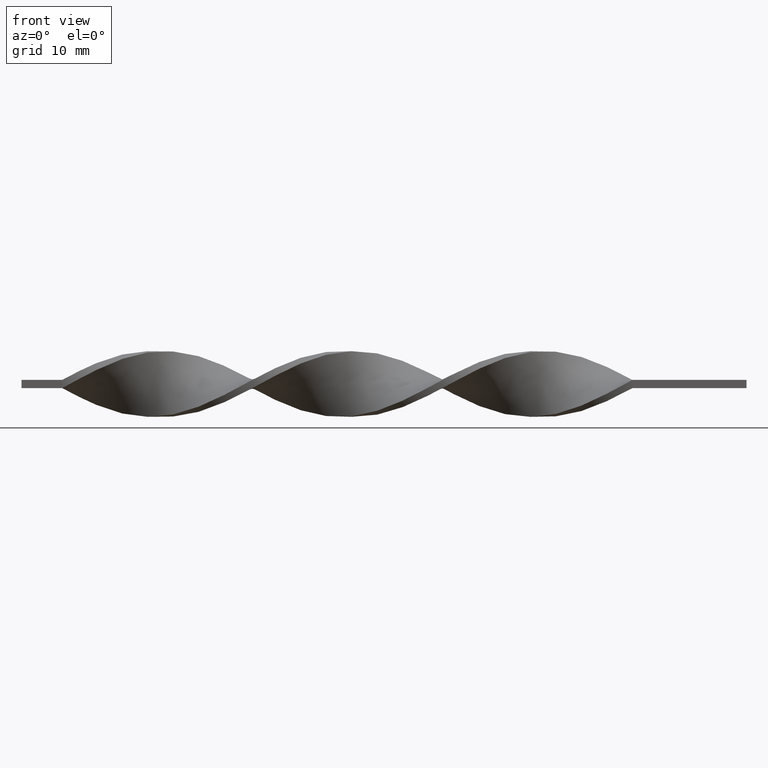
[diagram: clean part render]
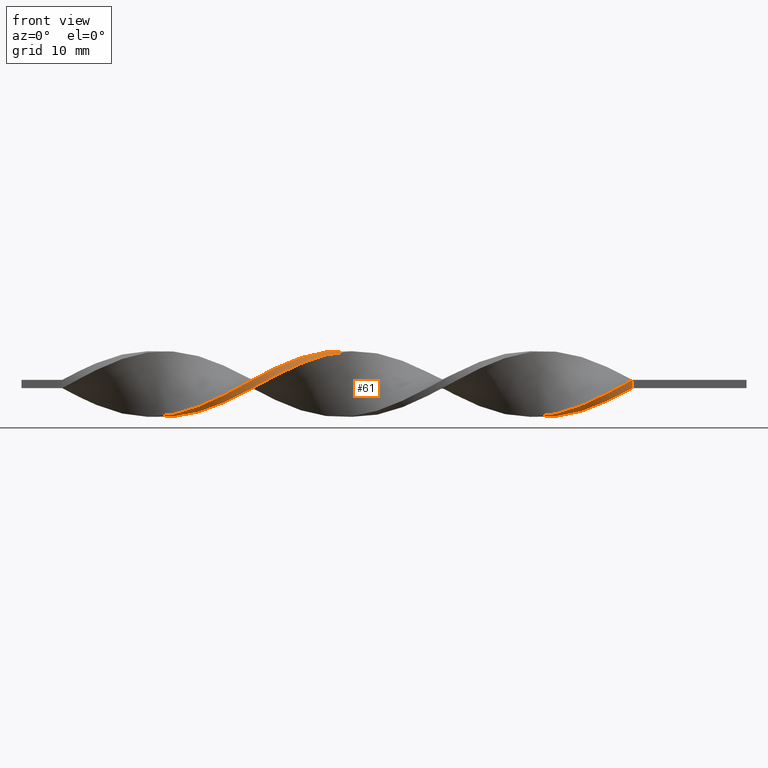
[diagram: same view with one face highlighted and labeled with its STEP entity id]
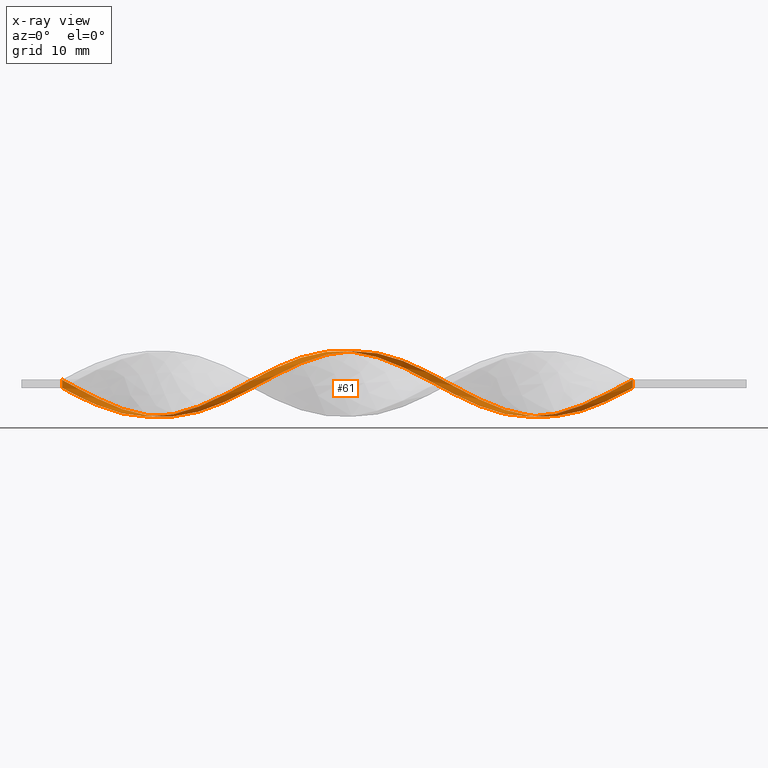
[diagram: x-ray of the same camera — body ghosted, the highlighted face saturated]
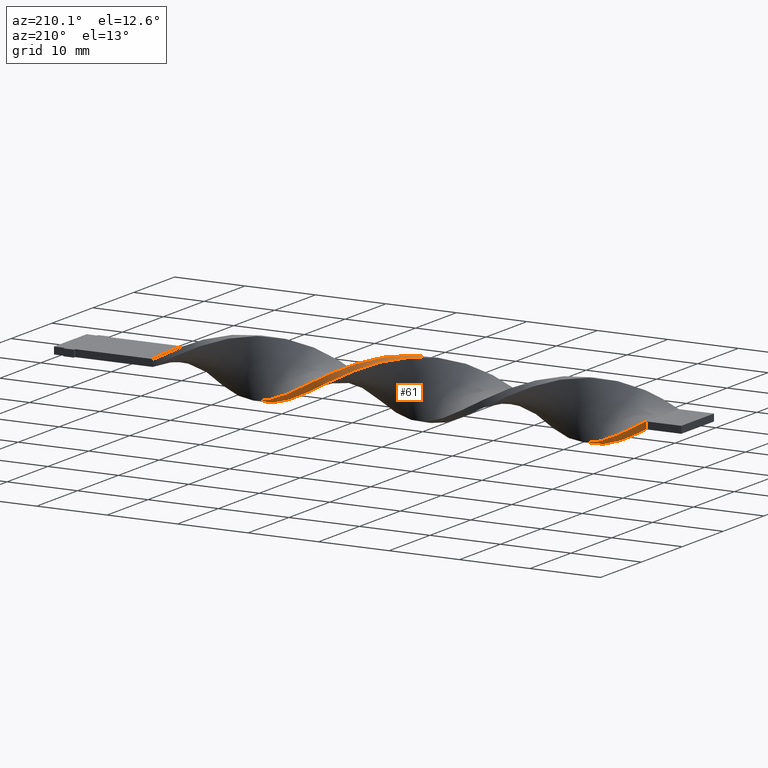
[diagram: same view with one face highlighted and labeled with its STEP entity id]
A machine part, front view. The second image highlights one B-rep face of the part: STEP entity #61.
The next image is the same camera in x-ray: the body ghosted, the highlighted face saturated — about 0% of this face is hidden behind the body in this view.
A second angle (auxiliary view) of the same face is appended — the face is thin or edge-on in the first view.
In plain terms, the highlighted face is a freeform B-spline surface patch.
Its self-contained STEP definition (entity closure, byte-faithful):
#4 = CARTESIAN_POINT ( 'NONE',  ( -36.43589743589743790, 4.060710991611127696, 0.01431206711095616389 ) ) ;
#14 = CARTESIAN_POINT ( 'NONE',  ( -57.07692307692307310, -3.774185688634725366, 1.416164675348471791 ) ) ;
#30 = CARTESIAN_POINT ( 'NONE',  ( -23.87179487179487580, -0.4752569063773750546, -4.032828965577023084 ) ) ;
#31 = CARTESIAN_POINT ( 'NONE',  ( -21.17948717948717885, -1.860767053977798069, -3.575967836940202815 ) ) ;
#38 = CARTESIAN_POINT ( 'NONE',  ( -24.76923076923076650, 0.01420771602773115982, -4.031103836519877248 ) ) ;
#46 = CARTESIAN_POINT ( 'NONE',  ( -52.58974358974359120, -2.318525361317903766, 3.333769449374405447 ) ) ;
#47 = CARTESIAN_POINT ( 'NONE',  ( -13.99999999999999822, -4.000000000000001776, 0.5000000000000000000 ) ) ;
#48 = CARTESIAN_POINT ( 'NONE',  ( -35.53846153846153300, 3.764109437560424265, -1.442733565863258072 ) ) ;
#56 = CARTESIAN_POINT ( 'NONE',  ( -49.89743589743589069, 0.01420771602773479234, 4.031103836519876360 ) ) ;
#57 = CARTESIAN_POINT ( 'NONE',  ( -53.48717948717948900, -2.683750919871453089, 3.007903090209048003 ) ) ;
#58 = CARTESIAN_POINT ( 'NONE',  ( -61.56410256410256920, -3.939289008388871860, -0.9856879328890418845 ) ) ;
#61 = ADVANCED_FACE ( 'NONE', ( #1386 ), #419, .T. ) ;
#64 = CARTESIAN_POINT ( 'NONE',  ( -83.10256410256410220, 3.939289008388866531, -0.9856879328890437719 ) ) ;
#65 = CARTESIAN_POINT ( 'NONE',  ( -72.33333333333332860, 0.5036723384328382069, -4.029378707462730524 ) ) ;
#66 = CARTESIAN_POINT ( 'NONE',  ( -81.30769230769233502, 3.946139212084839976, -0.9578955639853685700 ) ) ;
#73 = CARTESIAN_POINT ( 'NONE',  ( -84.00000000000000000, 3.999999999999996447, 0.4999999999999994449 ) ) ;
#79 = CARTESIAN_POINT ( 'NONE',  ( -80.41025641025640880, 3.774185688634719593, -1.416164675348469348 ) ) ;
#81 = CARTESIAN_POINT ( 'NONE',  ( -37.33333333333332860, 3.999999999999996447, -0.5000000000000005551 ) ) ;
#91 = CARTESIAN_POINT ( 'NONE',  ( -31.05128205128205821, 3.048976478424995751, -2.682036731043690114 ) ) ;
#90 = CARTESIAN_POINT ( 'NONE',  ( -62.46153846153845990, -3.764109437560431370, -1.442733565863256739 ) ) ;
#96 =( BOUNDED_CURVE ( )  B_SPLINE_CURVE ( 2, ( #847, #371, #967, #1331, #715, #98, #224, #356, #1109, #339, #738, #1080, #708, #232, #486, #470, #1597, #1609, #491, #599, #1322, #981, #1480, #1085, #830, #1575, #957, #1452, #1095, #207, #1199, #618, #1232, #1585, #1208, #590, #857, #348, #1339, #864, #1354, #722, #478, #841, #730, #1103, #216, #1217, #242, #105, #974, #121, #1473, #365, #1225, #612, #1012, #1502, #144, #158, #1383, #135, #778, #995, #271, #900, #650, #1116, #393, #754, #522, #1494, #1271, #887, #771, #657, #1137, #1391, #1264 ),
 .UNSPECIFIED., .F., .T. ) 
 B_SPLINE_CURVE_WITH_KNOTS ( ( 3, 2, 2, 2, 2, 2, 2, 2, 2, 2, 2, 2, 2, 2, 2, 2, 2, 2, 2, 2, 2, 2, 2, 2, 2, 2, 2, 2, 2, 2, 2, 2, 2, 2, 2, 2, 2, 2, 2, 3 ),
 ( 0.000000000000000000, 0.01923076923076923184, 0.03846153846153846367, 0.05769230769230768857, 0.07692307692307692735, 0.09615384615384615918, 0.1153846153846153771, 0.1346153846153846090, 0.1538461538461538547, 0.1730769230769230449, 0.1923076923076923184, 0.2115384615384615363, 0.2307692307692307543, 0.2500000000000000000, 0.2692307692307692180, 0.2884615384615384359, 0.3076923076923077094, 0.3269230769230769273, 0.3461538461538460898, 0.3653846153846153633, 0.3846153846153846367, 0.4038461538461539102, 0.4230769230769230727, 0.4423076923076922906, 0.4615384615384615086, 0.4807692307692307820, 0.5000000000000000000, 0.5192307692307692735, 0.5384615384615384359, 0.5576923076923077094, 0.5769230769230768718, 0.5961538461538461453, 0.6153846153846154188, 0.6346153846153845812, 0.6538461538461538547, 0.6730769230769230171, 0.6923076923076921796, 0.7115384615384615641, 0.7307692307692307265, 0.7500000000000000000 ),
 .UNSPECIFIED. ) 
 CURVE ( )  GEOMETRIC_REPRESENTATION_ITEM ( )  RATIONAL_B_SPLINE_CURVE ( ( 1.000000000000000000, 0.9927088740980539727, 1.000000000000000000, 0.9927088740980539727, 1.000000000000000000, 0.9927088740980539727, 1.000000000000000000, 0.9927088740980539727, 1.000000000000000000, 0.9927088740980539727, 1.000000000000000000, 0.9927088740980539727, 1.000000000000000000, 0.9927088740980539727, 1.000000000000000000, 0.9927088740980539727, 1.000000000000000000, 0.9927088740980539727, 1.000000000000000000, 0.9927088740980539727, 1.000000000000000000, 0.9927088740980539727, 1.000000000000000000, 0.9927088740980539727, 1.000000000000000000, 0.9927088740980539727, 1.000000000000000000, 0.9927088740980539727, 1.000000000000000000, 0.9927088740980539727, 1.000000000000000000, 0.9927088740980539727, 1.000000000000000000, 0.9927088740980539727, 1.000000000000000000, 0.9927088740980539727, 1.000000000000000000, 0.9927088740980539727, 1.000000000000000000, 0.9927088740980539727, 1.000000000000000000, 0.9927088740980539727, 1.000000000000000000, 0.9927088740980539727, 1.000000000000000000, 0.9927088740980539727, 1.000000000000000000, 0.9927088740980539727, 1.000000000000000000, 0.9927088740980539727, 1.000000000000000000, 0.9927088740980539727, 1.000000000000000000, 0.9927088740980539727, 1.000000000000000000, 0.9927088740980539727, 1.000000000000000000, 0.9927088740980539727, 1.000000000000000000, 0.9927088740980539727, 1.000000000000000000, 0.9927088740980539727, 1.000000000000000000, 0.9927088740980539727, 1.000000000000000000, 0.9927088740980539727, 1.000000000000000000, 0.9927088740980539727, 1.000000000000000000, 0.9927088740980539727, 1.000000000000000000, 0.9927088740980539727, 1.000000000000000000, 0.9927088740980539727, 1.000000000000000000, 0.9927088740980539727, 1.000000000000000000, 0.9927088740980539727, 1.000000000000000000 ) ) 
 REPRESENTATION_ITEM ( '' )  );
#98 = CARTESIAN_POINT ( 'NONE',  ( -18.48717948717948545, -3.602232165184606760, -1.874433786711570127 ) ) ;
#99 = CARTESIAN_POINT ( 'NONE',  ( -71.43589743589743080, 0.01420771602773115982, -4.031103836519877248 ) ) ;
#103 = CARTESIAN_POINT ( 'NONE',  ( -38.23076923076922640, 4.060710991611128584, -0.01431206711095887527 ) ) ;
#105 = CARTESIAN_POINT ( 'NONE',  ( -57.97435897435897090, -3.588929866731990881, 1.899779198837473260 ) ) ;
#121 = CARTESIAN_POINT ( 'NONE',  ( -59.76923076923076650, -3.939289008388871416, 0.9856879328890443270 ) ) ;
#129 = CARTESIAN_POINT ( 'NONE',  ( -22.07692307692308020, -1.426565947277501190, -3.801905862948829817 ) ) ;
#135 = CARTESIAN_POINT ( 'NONE',  ( -68.74358974358973740, -2.318525361317905986, -3.333769449374404559 ) ) ;
#144 = CARTESIAN_POINT ( 'NONE',  ( -66.05128205128204399, -3.325604321804804364, -2.278235258877629121 ) ) ;
#146 = CARTESIAN_POINT ( 'NONE',  ( -19.38461538461538325, -3.325604321804804364, -2.278235258877629121 ) ) ;
#150 = CARTESIAN_POINT ( 'NONE',  ( -84.00000000000000000, 3.999999999999996447, 0.4999999999999994449 ) ) ;
#152 = CARTESIAN_POINT ( 'NONE',  ( -28.35897435897435770, 1.885927669512846183, -3.562762527220390663 ) ) ;
#158 = CARTESIAN_POINT ( 'NONE',  ( -66.94871794871795601, -3.048976478425003300, -2.682036731043689670 ) ) ;
#161 = CARTESIAN_POINT ( 'NONE',  ( -40.02564102564102200, 3.588929866731985996, 1.899779198837470151 ) ) ;
#167 = CARTESIAN_POINT ( 'NONE',  ( -43.61538461538461320, 3.048976478424997527, 2.682036731043688338 ) ) ;
#168 = CARTESIAN_POINT ( 'NONE',  ( -71.43589743589743080, 0.01420771602773115982, -4.031103836519877248 ) ) ;
#169 = CARTESIAN_POINT ( 'NONE',  ( -23.87179487179487580, -0.4752569063773750546, -4.032828965577023084 ) ) ;
#175 = CARTESIAN_POINT ( 'NONE',  ( -82.20512820512820440, 3.764109437560424265, -1.442733565863258072 ) ) ;
#176 = CARTESIAN_POINT ( 'NONE',  ( -48.10256410256410220, -0.01420771602773587654, 4.031103836519877248 ) ) ;
#183 = CARTESIAN_POINT ( 'NONE',  ( -80.41025641025640880, 3.309462516590951253, -2.301620701001679148 ) ) ;
#184 = CARTESIAN_POINT ( 'NONE',  ( -70.53846153846153300, -0.4752569063773750546, -4.032828965577023084 ) ) ;
#190 = CARTESIAN_POINT ( 'NONE',  ( -73.23076923076924061, 0.9785011580703154577, -3.910567156264553645 ) ) ;
#191 = CARTESIAN_POINT ( 'NONE',  ( -57.97435897435897090, -3.946139212084846193, 0.9578955639853690140 ) ) ;
#192 = CARTESIAN_POINT ( 'NONE',  ( -80.41025641025640880, 3.774185688634719593, -1.416164675348469348 ) ) ;
#205 = CARTESIAN_POINT ( 'NONE',  ( -30.15384615384615330, 1.860767053977791186, -3.575967836940203259 ) ) ;
#207 = CARTESIAN_POINT ( 'NONE',  ( -40.02564102564102200, 3.946139212084840420, 0.9578955639853660164 ) ) ;
#216 = CARTESIAN_POINT ( 'NONE',  ( -55.28205128205128460, -2.662481663564007395, 3.026746007048731535 ) ) ;
#223 = CARTESIAN_POINT ( 'NONE',  ( -43.61538461538461320, 2.294968160678089841, 3.350029810931575369 ) ) ;
#224 = CARTESIAN_POINT ( 'NONE',  ( -19.38461538461538325, -3.325604321804804364, -2.278235258877629121 ) ) ;
#226 = CARTESIAN_POINT ( 'NONE',  ( -74.12820512820512420, 1.453329977707793486, -3.791755605066376766 ) ) ;
#232 = CARTESIAN_POINT ( 'NONE',  ( -25.66666666666666785, -0.5036723384328447572, -4.029378707462730524 ) ) ;
#233 = CARTESIAN_POINT ( 'NONE',  ( -41.82051282051281760, 3.602232165184600987, 1.874433786711569683 ) ) ;
#242 = CARTESIAN_POINT ( 'NONE',  ( -57.07692307692307310, -3.309462516590956138, 2.301620701001680924 ) ) ;
#248 = CARTESIAN_POINT ( 'NONE',  ( -43.61538461538461320, 2.294968160678089397, 3.350029810931575369 ) ) ;
#249 = VERTEX_POINT ( 'NONE', #150 ) ;
#254 = CARTESIAN_POINT ( 'NONE',  ( -16.69230769230769340, -3.588929866731991769, -1.899779198837471483 ) ) ;
#265 = CARTESIAN_POINT ( 'NONE',  ( -14.89743589743589602, -3.939289008388871416, -0.9856879328890418845 ) ) ;
#271 = CARTESIAN_POINT ( 'NONE',  ( -71.43589743589743080, -0.9785011580703230072, -3.910567156264553645 ) ) ;
#273 = CARTESIAN_POINT ( 'NONE',  ( -17.58974358974358765, -3.309462516590957915, -2.301620701001678260 ) ) ;
#280 = CARTESIAN_POINT ( 'NONE',  ( -13.99999999999999645, -4.000000000000001776, 0.5000000000000000000 ) ) ;
#287 = CARTESIAN_POINT ( 'NONE',  ( -59.76923076923077360, -3.939289008388871860, 0.9856879328890442160 ) ) ;
#288 = CARTESIAN_POINT ( 'NONE',  ( -76.82051282051281760, 2.683750919871447760, -3.007903090209047114 ) ) ;
#289 = CARTESIAN_POINT ( 'NONE',  ( -19.38461538461538325, -2.662481663564009615, -3.026746007048730203 ) ) ;
#295 = CARTESIAN_POINT ( 'NONE',  ( -47.20512820512820440, 1.453329977707793708, 3.791755605066376766 ) ) ;
#305 = CARTESIAN_POINT ( 'NONE',  ( -66.94871794871794179, -3.048976478425003300, -2.682036731043689226 ) ) ;
#306 = CARTESIAN_POINT ( 'NONE',  ( -61.56410256410256920, -3.939289008388871416, -0.9856879328890418845 ) ) ;
#315 = CARTESIAN_POINT ( 'NONE',  ( -63.35897435897435770, -3.946139212084847081, -0.9578955639853673487 ) ) ;
#317 = CARTESIAN_POINT ( 'NONE',  ( -83.10256410256410220, 4.060710991611128584, 0.01431206711095616389 ) ) ;
#319 = CARTESIAN_POINT ( 'NONE',  ( -15.79487179487179205, -4.003425101847988721, -0.4717917484372047832 ) ) ;
#320 = CARTESIAN_POINT ( 'NONE',  ( -31.05128205128205821, 2.294968160678087621, -3.350029810931577146 ) ) ;
#321 = CARTESIAN_POINT ( 'NONE',  ( -29.25641025641025905, 2.318525361317899325, -3.333769449374405003 ) ) ;
#326 = CARTESIAN_POINT ( 'NONE',  ( -27.46153846153846345, 0.4752569063773683933, -4.032828965577022196 ) ) ;
#327 = CARTESIAN_POINT ( 'NONE',  ( -61.56410256410256920, -4.060710991611132137, 0.01431206711095800790 ) ) ;
#328 = CARTESIAN_POINT ( 'NONE',  ( -65.15384615384614619, -3.029995166449924948, -2.703462203165885480 ) ) ;
#336 = CARTESIAN_POINT ( 'NONE',  ( -26.56410256410256210, -0.01420771602773864169, -4.031103836519877248 ) ) ;
#338 = CARTESIAN_POINT ( 'NONE',  ( -50.79487179487178850, -1.453329977707798815, 3.791755605066378099 ) ) ;
#339 = CARTESIAN_POINT ( 'NONE',  ( -22.07692307692308020, -2.318525361317905986, -3.333769449374404559 ) ) ;
#348 = CARTESIAN_POINT ( 'NONE',  ( -47.20512820512820440, 1.453329977707793708, 3.791755605066376766 ) ) ;
#350 = CARTESIAN_POINT ( 'NONE',  ( -79.51282051282051100, 3.602232165184600099, -1.874433786711570571 ) ) ;
#356 = CARTESIAN_POINT ( 'NONE',  ( -20.28205128205128460, -3.048976478425003300, -2.682036731043689670 ) ) ;
#359 = CARTESIAN_POINT ( 'NONE',  ( -69.64102564102564941, -0.9509114268274386772, -3.917367414262925784 ) ) ;
#365 = CARTESIAN_POINT ( 'NONE',  ( -61.56410256410256920, -4.060710991611132137, 0.01431206711095800790 ) ) ;
#366 = CARTESIAN_POINT ( 'NONE',  ( -65.15384615384614619, -3.029995166449924504, -2.703462203165885924 ) ) ;
#371 = CARTESIAN_POINT ( 'NONE',  ( -14.89743589743589602, -4.060710991611132137, 0.01431206711095800790 ) ) ;
#382 = CARTESIAN_POINT ( 'NONE',  ( -36.43589743589743790, 4.060710991611128584, 0.01431206711095616389 ) ) ;
#389 = CARTESIAN_POINT ( 'NONE',  ( -18.48717948717948545, -3.602232165184606760, -1.874433786711570127 ) ) ;
#393 = CARTESIAN_POINT ( 'NONE',  ( -75.02564102564102200, 0.9509114268274311277, -3.917367414262925784 ) ) ;
#394 = DIRECTION ( 'NONE',  ( -0.000000000000000000, -0.000000000000000000, -1.000000000000000000 ) ) ;
#395 = B_SPLINE_CURVE_WITH_KNOTS ( 'NONE', 3,
 ( #1511, #1361, #1250, #764 ),
 .UNSPECIFIED., .F., .F.,
 ( 4, 4 ),
 ( 0.000000000000000000, 1.000000000000000000 ),
 .UNSPECIFIED. ) ;
#408 = CARTESIAN_POINT ( 'NONE',  ( -33.74358974358974450, 3.774185688634719593, -1.416164675348469348 ) ) ;
#409 = VERTEX_POINT ( 'NONE', #1491 ) ;
#414 = CARTESIAN_POINT ( 'NONE',  ( -55.28205128205128460, -2.662481663564007395, 3.026746007048731535 ) ) ;
#415 = CARTESIAN_POINT ( 'NONE',  ( -41.82051282051281760, 3.029995166449919175, 2.703462203165885480 ) ) ;
#416 = CARTESIAN_POINT ( 'NONE',  ( -18.48717948717948545, -3.029995166449924504, -2.703462203165885924 ) ) ;
#419 =( BOUNDED_SURFACE ( )  B_SPLINE_SURFACE ( 1, 2, ( 
 ( #660, #526, #1266, #1017, #273, #416, #289, #1141, #31, #1150, #791, #169, #1367, #637, #646, #1455, #676, #321, #1446, #91, #1087, #1612, #1589, #543, #742, #382, #1482, #1244, #509, #999, #1498, #1462, #1338, #223, #1216, #606, #1596, #460, #973, #1479, #947, #338, #1321, #707, #589, #747, #633, #997, #14, #191, #1560, #917, #1314, #58, #90, #1209, #1096, #366, #480, #976, #1325, #1467, #359, #699, #99, #850, #1341, #226, #1074, #724, #832, #1577, #959, #350, #192, #66, #1444, #317, #831 ),
 ( #47, #1055, #319, #1023, #507, #389, #146, #1368, #1385, #525, #1016, #1182, #939, #1432, #336, #326, #828, #1319, #205, #320, #452, #1300, #683, #1062, #48, #621, #81, #103, #1101, #641, #855, #233, #1374, #167, #1295, #1312, #1305, #295, #1030, #1169, #56, #665, #426, #1525, #1060, #908, #414, #1045, #1400, #924, #1053, #287, #1550, #327, #658, #315, #1542, #821, #940, #305, #565, #672, #931, #441, #1424, #557, #797, #789, #815, #1281, #433, #1417, #1433, #804, #183, #1287, #175, #64, #681 ) ),
 .UNSPECIFIED., .F., .F., .F. ) 
 B_SPLINE_SURFACE_WITH_KNOTS ( ( 2, 2 ),
 ( 3, 2, 2, 2, 2, 2, 2, 2, 2, 2, 2, 2, 2, 2, 2, 2, 2, 2, 2, 2, 2, 2, 2, 2, 2, 2, 2, 2, 2, 2, 2, 2, 2, 2, 2, 2, 2, 2, 2, 3 ),
 ( 0.000000000000000000, 1.000000000000000000 ),
 ( 0.000000000000000000, 0.01923076923076923184, 0.03846153846153846367, 0.05769230769230769551, 0.07692307692307692735, 0.09615384615384615918, 0.1153846153846153910, 0.1346153846153846090, 0.1538461538461538547, 0.1730769230769230727, 0.1923076923076923184, 0.2115384615384615363, 0.2307692307692307820, 0.2500000000000000000, 0.2692307692307692180, 0.2884615384615384359, 0.3076923076923077094, 0.3269230769230769273, 0.3461538461538461453, 0.3653846153846153633, 0.3846153846153846367, 0.4038461538461538547, 0.4230769230769230727, 0.4423076923076922906, 0.4615384615384615641, 0.4807692307692307820, 0.5000000000000000000, 0.5192307692307692735, 0.5384615384615384359, 0.5576923076923077094, 0.5769230769230768718, 0.5961538461538461453, 0.6153846153846154188, 0.6346153846153845812, 0.6538461538461538547, 0.6730769230769231282, 0.6923076923076922906, 0.7115384615384615641, 0.7307692307692307265, 0.7500000000000000000 ),
 .UNSPECIFIED. ) 
 GEOMETRIC_REPRESENTATION_ITEM ( )  RATIONAL_B_SPLINE_SURFACE ( (
 ( 1.000000000000000000, 0.9927088740980539727, 1.000000000000000000, 0.9927088740980539727, 1.000000000000000000, 0.9927088740980539727, 1.000000000000000000, 0.9927088740980539727, 1.000000000000000000, 0.9927088740980539727, 1.000000000000000000, 0.9927088740980539727, 1.000000000000000000, 0.9927088740980539727, 1.000000000000000000, 0.9927088740980539727, 1.000000000000000000, 0.9927088740980539727, 1.000000000000000000, 0.9927088740980539727, 1.000000000000000000, 0.9927088740980539727, 1.000000000000000000, 0.9927088740980539727, 1.000000000000000000, 0.9927088740980539727, 1.000000000000000000, 0.9927088740980539727, 1.000000000000000000, 0.9927088740980539727, 1.000000000000000000, 0.9927088740980539727, 1.000000000000000000, 0.9927088740980539727, 1.000000000000000000, 0.9927088740980539727, 1.000000000000000000, 0.9927088740980539727, 1.000000000000000000, 0.9927088740980539727, 1.000000000000000000, 0.9927088740980539727, 1.000000000000000000, 0.9927088740980539727, 1.000000000000000000, 0.9927088740980539727, 1.000000000000000000, 0.9927088740980539727, 1.000000000000000000, 0.9927088740980539727, 1.000000000000000000, 0.9927088740980539727, 1.000000000000000000, 0.9927088740980539727, 1.000000000000000000, 0.9927088740980539727, 1.000000000000000000, 0.9927088740980539727, 1.000000000000000000, 0.9927088740980539727, 1.000000000000000000, 0.9927088740980539727, 1.000000000000000000, 0.9927088740980539727, 1.000000000000000000, 0.9927088740980539727, 1.000000000000000000, 0.9927088740980539727, 1.000000000000000000, 0.9927088740980539727, 1.000000000000000000, 0.9927088740980539727, 1.000000000000000000, 0.9927088740980539727, 1.000000000000000000, 0.9927088740980539727, 1.000000000000000000, 0.9927088740980539727, 1.000000000000000000),
 ( 1.000000000000000000, 0.9927088740980539727, 1.000000000000000000, 0.9927088740980539727, 1.000000000000000000, 0.9927088740980539727, 1.000000000000000000, 0.9927088740980539727, 1.000000000000000000, 0.9927088740980539727, 1.000000000000000000, 0.9927088740980539727, 1.000000000000000000, 0.9927088740980539727, 1.000000000000000000, 0.9927088740980539727, 1.000000000000000000, 0.9927088740980539727, 1.000000000000000000, 0.9927088740980539727, 1.000000000000000000, 0.9927088740980539727, 1.000000000000000000, 0.9927088740980539727, 1.000000000000000000, 0.9927088740980539727, 1.000000000000000000, 0.9927088740980539727, 1.000000000000000000, 0.9927088740980539727, 1.000000000000000000, 0.9927088740980539727, 1.000000000000000000, 0.9927088740980539727, 1.000000000000000000, 0.9927088740980539727, 1.000000000000000000, 0.9927088740980539727, 1.000000000000000000, 0.9927088740980539727, 1.000000000000000000, 0.9927088740980539727, 1.000000000000000000, 0.9927088740980539727, 1.000000000000000000, 0.9927088740980539727, 1.000000000000000000, 0.9927088740980539727, 1.000000000000000000, 0.9927088740980539727, 1.000000000000000000, 0.9927088740980539727, 1.000000000000000000, 0.9927088740980539727, 1.000000000000000000, 0.9927088740980539727, 1.000000000000000000, 0.9927088740980539727, 1.000000000000000000, 0.9927088740980539727, 1.000000000000000000, 0.9927088740980539727, 1.000000000000000000, 0.9927088740980539727, 1.000000000000000000, 0.9927088740980539727, 1.000000000000000000, 0.9927088740980539727, 1.000000000000000000, 0.9927088740980539727, 1.000000000000000000, 0.9927088740980539727, 1.000000000000000000, 0.9927088740980539727, 1.000000000000000000, 0.9927088740980539727, 1.000000000000000000, 0.9927088740980539727, 1.000000000000000000) ) ) 
 REPRESENTATION_ITEM ( '' )  SURFACE ( )  );
#426 = CARTESIAN_POINT ( 'NONE',  ( -51.69230769230769340, -0.9509114268274376780, 3.917367414262926673 ) ) ;
#427 = CARTESIAN_POINT ( 'NONE',  ( -63.35897435897436480, -3.588929866731991769, -1.899779198837471483 ) ) ;
#433 = CARTESIAN_POINT ( 'NONE',  ( -76.82051282051281760, 1.860767053977791186, -3.575967836940203259 ) ) ;
#434 = CARTESIAN_POINT ( 'NONE',  ( -59.76923076923076650, -4.060710991611132137, -0.01431206711095567644 ) ) ;
#436 = VERTEX_POINT ( 'NONE', #494 ) ;
#441 = CARTESIAN_POINT ( 'NONE',  ( -70.53846153846153300, -1.453329977707800813, -3.791755605066376766 ) ) ;
#442 = CARTESIAN_POINT ( 'NONE',  ( -57.07692307692307310, -3.774185688634725366, 1.416164675348471791 ) ) ;
#450 = CARTESIAN_POINT ( 'NONE',  ( -64.25641025641024839, -3.309462516590957915, -2.301620701001678260 ) ) ;
#452 = CARTESIAN_POINT ( 'NONE',  ( -31.94871794871794535, 2.662481663564002066, -3.026746007048731091 ) ) ;
#460 = CARTESIAN_POINT ( 'NONE',  ( -47.20512820512820440, 0.4752569063773685043, 4.032828965577022196 ) ) ;
#461 = CARTESIAN_POINT ( 'NONE',  ( -57.97435897435897090, -3.946139212084845749, 0.9578955639853691251 ) ) ;
#466 = VERTEX_POINT ( 'NONE', #488 ) ;
#470 = CARTESIAN_POINT ( 'NONE',  ( -27.46153846153846345, 0.4752569063773683933, -4.032828965577022196 ) ) ;
#478 = CARTESIAN_POINT ( 'NONE',  ( -51.69230769230769340, -0.9509114268274376780, 3.917367414262926673 ) ) ;
#480 = CARTESIAN_POINT ( 'NONE',  ( -66.05128205128204399, -2.662481663564009615, -3.026746007048730203 ) ) ;
#486 = CARTESIAN_POINT ( 'NONE',  ( -26.56410256410256210, -0.01420771602773864169, -4.031103836519877248 ) ) ;
#488 = CARTESIAN_POINT ( 'NONE',  ( -84.00000000000000000, 3.999999999999996447, -0.5000000000000005551 ) ) ;
#491 = CARTESIAN_POINT ( 'NONE',  ( -30.15384615384615330, 1.860767053977791186, -3.575967836940203259 ) ) ;
#494 = CARTESIAN_POINT ( 'NONE',  ( -13.99999999999999645, -4.000000000000001776, -0.5000000000000000000 ) ) ;
#506 = CARTESIAN_POINT ( 'NONE',  ( -44.51282051282051100, 1.860767053977792074, 3.575967836940202815 ) ) ;
#507 = CARTESIAN_POINT ( 'NONE',  ( -17.58974358974358765, -3.774185688634726255, -1.416164675348468682 ) ) ;
#509 = CARTESIAN_POINT ( 'NONE',  ( -39.12820512820512420, 3.764109437560425597, 1.442733565863255629 ) ) ;
#515 = CARTESIAN_POINT ( 'NONE',  ( -15.79487179487179205, -3.764109437560431370, -1.442733565863256739 ) ) ;
#522 = CARTESIAN_POINT ( 'NONE',  ( -76.82051282051281760, 1.860767053977791186, -3.575967836940203259 ) ) ;
#525 = CARTESIAN_POINT ( 'NONE',  ( -22.07692307692308376, -2.318525361317905542, -3.333769449374405003 ) ) ;
#526 = CARTESIAN_POINT ( 'NONE',  ( -14.89743589743589602, -3.939289008388871860, -0.9856879328890418845 ) ) ;
#534 = CARTESIAN_POINT ( 'NONE',  ( -17.58974358974358765, -3.309462516590957915, -2.301620701001678260 ) ) ;
#542 = CARTESIAN_POINT ( 'NONE',  ( -26.56410256410256210, 0.9785011580703154577, -3.910567156264553645 ) ) ;
#543 = CARTESIAN_POINT ( 'NONE',  ( -34.64102564102564230, 3.946139212084839976, -0.9578955639853685700 ) ) ;
#549 = CARTESIAN_POINT ( 'NONE',  ( -68.74358974358973740, -1.426565947277501190, -3.801905862948829817 ) ) ;
#554 = EDGE_CURVE ( 'NONE', #409, #436, #1015, .T. ) ;
#557 = CARTESIAN_POINT ( 'NONE',  ( -72.33333333333332860, -0.5036723384328446462, -4.029378707462730524 ) ) ;
#558 = CARTESIAN_POINT ( 'NONE',  ( -49.89743589743589069, -0.9785011580703193435, 3.910567156264554534 ) ) ;
#565 = CARTESIAN_POINT ( 'NONE',  ( -67.84615384615385381, -2.683750919871454421, -3.007903090209046670 ) ) ;
#589 = CARTESIAN_POINT ( 'NONE',  ( -53.48717948717948900, -2.683750919871453089, 3.007903090209048003 ) ) ;
#590 = CARTESIAN_POINT ( 'NONE',  ( -45.41025641025640880, 2.318525361317901545, 3.333769449374403671 ) ) ;
#599 = CARTESIAN_POINT ( 'NONE',  ( -31.05128205128205465, 2.294968160678087177, -3.350029810931577146 ) ) ;
#606 = CARTESIAN_POINT ( 'NONE',  ( -45.41025641025640880, 1.426565947277497193, 3.801905862948828485 ) ) ;
#612 = CARTESIAN_POINT ( 'NONE',  ( -63.35897435897436480, -3.946139212084846637, -0.9578955639853673487 ) ) ;
#618 = CARTESIAN_POINT ( 'NONE',  ( -41.82051282051281760, 3.602232165184600987, 1.874433786711569683 ) ) ;
#621 = CARTESIAN_POINT ( 'NONE',  ( -36.43589743589743790, 3.939289008388866531, -0.9856879328890437719 ) ) ;
#628 = CARTESIAN_POINT ( 'NONE',  ( -27.46153846153846345, 1.453329977707793486, -3.791755605066376766 ) ) ;
#633 = CARTESIAN_POINT ( 'NONE',  ( -55.28205128205128460, -3.325604321804803032, 2.278235258877630898 ) ) ;
#635 = CARTESIAN_POINT ( 'NONE',  ( -18.48717948717948545, -3.029995166449924948, -2.703462203165885480 ) ) ;
#637 = CARTESIAN_POINT ( 'NONE',  ( -25.66666666666666785, 0.5036723384328383180, -4.029378707462730524 ) ) ;
#640 = EDGE_CURVE ( 'NONE', #436, #249, #1536, .T. ) ;
#641 = CARTESIAN_POINT ( 'NONE',  ( -40.02564102564102200, 3.946139212084840864, 0.9578955639853660164 ) ) ;
#646 = CARTESIAN_POINT ( 'NONE',  ( -26.56410256410256210, 0.9785011580703154577, -3.910567156264553645 ) ) ;
#650 = CARTESIAN_POINT ( 'NONE',  ( -73.23076923076924061, -0.01420771602773864169, -4.031103836519877248 ) ) ;
#651 = CARTESIAN_POINT ( 'NONE',  ( -30.15384615384615330, 2.683750919871447760, -3.007903090209047114 ) ) ;
#653 = VECTOR ( 'NONE', #394, 1000.000000000000000 ) ;
#657 = CARTESIAN_POINT ( 'NONE',  ( -81.30769230769232081, 3.588929866731984664, -1.899779198837472816 ) ) ;
#658 = CARTESIAN_POINT ( 'NONE',  ( -62.46153846153845990, -4.003425101847988721, -0.4717917484372047832 ) ) ;
#659 = CARTESIAN_POINT ( 'NONE',  ( -38.23076923076922640, 3.939289008388866531, 0.9856879328890409964 ) ) ;
#660 = CARTESIAN_POINT ( 'NONE',  ( -13.99999999999999822, -4.000000000000001776, -0.5000000000000000000 ) ) ;
#665 = CARTESIAN_POINT ( 'NONE',  ( -50.79487179487178850, -0.4752569063773728897, 4.032828965577023084 ) ) ;
#666 = CARTESIAN_POINT ( 'NONE',  ( -69.64102564102564941, -0.9509114268274386772, -3.917367414262925784 ) ) ;
#672 = CARTESIAN_POINT ( 'NONE',  ( -68.74358974358973740, -2.318525361317905542, -3.333769449374405003 ) ) ;
#676 = CARTESIAN_POINT ( 'NONE',  ( -28.35897435897435770, 1.885927669512846183, -3.562762527220390663 ) ) ;
#681 = CARTESIAN_POINT ( 'NONE',  ( -84.00000000000000000, 3.999999999999996447, -0.5000000000000005551 ) ) ;
#682 = CARTESIAN_POINT ( 'NONE',  ( -78.61538461538461320, 3.325604321804797259, -2.278235258877630898 ) ) ;
#683 = CARTESIAN_POINT ( 'NONE',  ( -33.74358974358974450, 3.309462516590951253, -2.301620701001679148 ) ) ;
#690 = CARTESIAN_POINT ( 'NONE',  ( -75.02564102564102200, 1.885927669512846183, -3.562762527220390663 ) ) ;
#699 = CARTESIAN_POINT ( 'NONE',  ( -70.53846153846153300, -0.4752569063773750546, -4.032828965577023084 ) ) ;
#707 = CARTESIAN_POINT ( 'NONE',  ( -52.58974358974358410, -2.318525361317903322, 3.333769449374405447 ) ) ;
#708 = CARTESIAN_POINT ( 'NONE',  ( -24.76923076923076650, -0.9785011580703230072, -3.910567156264553645 ) ) ;
#715 = CARTESIAN_POINT ( 'NONE',  ( -17.58974358974358765, -3.774185688634726255, -1.416164675348468682 ) ) ;
#722 = CARTESIAN_POINT ( 'NONE',  ( -50.79487179487178850, -0.4752569063773730007, 4.032828965577023084 ) ) ;
#724 = CARTESIAN_POINT ( 'NONE',  ( -75.92307692307693401, 2.318525361317899325, -3.333769449374405003 ) ) ;
#730 = CARTESIAN_POINT ( 'NONE',  ( -53.48717948717948900, -1.860767053977796737, 3.575967836940203259 ) ) ;
#738 = CARTESIAN_POINT ( 'NONE',  ( -22.97435897435897090, -1.885927669512853289, -3.562762527220390218 ) ) ;
#742 = CARTESIAN_POINT ( 'NONE',  ( -35.53846153846153300, 4.003425101847982504, -0.4717917484372062265 ) ) ;
#747 = CARTESIAN_POINT ( 'NONE',  ( -54.38461538461538680, -3.048976478425000192, 2.682036731043691891 ) ) ;
#754 = CARTESIAN_POINT ( 'NONE',  ( -75.92307692307691980, 1.426565947277494528, -3.801905862948829373 ) ) ;
#757 = CARTESIAN_POINT ( 'NONE',  ( -29.25641025641025905, 2.318525361317899325, -3.333769449374404559 ) ) ;
#764 = CARTESIAN_POINT ( 'NONE',  ( -84.00000000000000000, 3.999999999999996447, -0.5000000000000005551 ) ) ;
#765 = CARTESIAN_POINT ( 'NONE',  ( -25.66666666666666785, 0.5036723384328382069, -4.029378707462730524 ) ) ;
#771 = CARTESIAN_POINT ( 'NONE',  ( -80.41025641025640880, 3.309462516590951253, -2.301620701001679148 ) ) ;
#778 = CARTESIAN_POINT ( 'NONE',  ( -69.64102564102564941, -1.885927669512853289, -3.562762527220390218 ) ) ;
#789 = CARTESIAN_POINT ( 'NONE',  ( -74.12820512820512420, 0.4752569063773683933, -4.032828965577022196 ) ) ;
#790 = CARTESIAN_POINT ( 'NONE',  ( -60.66666666666666430, -4.000000000000001776, -0.5000000000000000000 ) ) ;
#791 = CARTESIAN_POINT ( 'NONE',  ( -22.97435897435897090, -0.9509114268274386772, -3.917367414262925784 ) ) ;
#797 = CARTESIAN_POINT ( 'NONE',  ( -73.23076923076924061, -0.01420771602773864169, -4.031103836519877248 ) ) ;
#804 = CARTESIAN_POINT ( 'NONE',  ( -79.51282051282051100, 3.029995166449918287, -2.703462203165885924 ) ) ;
#805 = CARTESIAN_POINT ( 'NONE',  ( -54.38461538461538680, -3.048976478425000192, 2.682036731043692335 ) ) ;
#809 = EDGE_CURVE ( 'NONE', #409, #466, #96, .T. ) ;
#815 = CARTESIAN_POINT ( 'NONE',  ( -75.02564102564102200, 0.9509114268274311277, -3.917367414262925784 ) ) ;
#821 = CARTESIAN_POINT ( 'NONE',  ( -65.15384615384614619, -3.602232165184606760, -1.874433786711570127 ) ) ;
#822 = CARTESIAN_POINT ( 'NONE',  ( -46.30769230769230660, 0.9509114268274330151, 3.917367414262925784 ) ) ;
#828 = CARTESIAN_POINT ( 'NONE',  ( -28.35897435897435770, 0.9509114268274311277, -3.917367414262925784 ) ) ;
#830 = CARTESIAN_POINT ( 'NONE',  ( -35.53846153846153300, 3.764109437560424265, -1.442733565863258072 ) ) ;
#831 = CARTESIAN_POINT ( 'NONE',  ( -84.00000000000000000, 3.999999999999996447, 0.4999999999999994449 ) ) ;
#832 = CARTESIAN_POINT ( 'NONE',  ( -76.82051282051281760, 2.683750919871447760, -3.007903090209047114 ) ) ;
#841 = CARTESIAN_POINT ( 'NONE',  ( -52.58974358974359120, -1.426565947277498747, 3.801905862948830261 ) ) ;
#847 = CARTESIAN_POINT ( 'NONE',  ( -13.99999999999999645, -4.000000000000001776, 0.5000000000000000000 ) ) ;
#850 = CARTESIAN_POINT ( 'NONE',  ( -72.33333333333332860, 0.5036723384328383180, -4.029378707462730524 ) ) ;
#854 = ORIENTED_EDGE ( 'NONE', *, *, #809, .T. ) ;
#855 = CARTESIAN_POINT ( 'NONE',  ( -40.92307692307691980, 3.774185688634720037, 1.416164675348468460 ) ) ;
#857 = CARTESIAN_POINT ( 'NONE',  ( -46.30769230769230660, 1.885927669512847737, 3.562762527220390218 ) ) ;
#864 = CARTESIAN_POINT ( 'NONE',  ( -49.00000000000000000, 0.5036723384328393172, 4.029378707462730524 ) ) ;
#866 = EDGE_CURVE ( 'NONE', #249, #466, #395, .T. ) ;
#887 = CARTESIAN_POINT ( 'NONE',  ( -79.51282051282051100, 3.029995166449918287, -2.703462203165885924 ) ) ;
#900 = CARTESIAN_POINT ( 'NONE',  ( -72.33333333333332860, -0.5036723384328447572, -4.029378707462730524 ) ) ;
#901 = CARTESIAN_POINT ( 'NONE',  ( -34.64102564102564230, 3.946139212084839532, -0.9578955639853686810 ) ) ;
#908 = CARTESIAN_POINT ( 'NONE',  ( -54.38461538461538680, -2.294968160678091618, 3.350029810931578034 ) ) ;
#909 = CARTESIAN_POINT ( 'NONE',  ( -42.71794871794872250, 2.662481663564003842, 3.026746007048729759 ) ) ;
#916 = CARTESIAN_POINT ( 'NONE',  ( -67.84615384615385381, -1.860767053977798069, -3.575967836940202815 ) ) ;
#917 = CARTESIAN_POINT ( 'NONE',  ( -59.76923076923077360, -4.060710991611132137, -0.01431206711095567644 ) ) ;
#924 = CARTESIAN_POINT ( 'NONE',  ( -57.97435897435897090, -3.588929866731990437, 1.899779198837473260 ) ) ;
#931 = CARTESIAN_POINT ( 'NONE',  ( -69.64102564102564941, -1.885927669512853289, -3.562762527220390218 ) ) ;
#939 = CARTESIAN_POINT ( 'NONE',  ( -24.76923076923076650, -0.9785011580703230072, -3.910567156264553645 ) ) ;
#940 = CARTESIAN_POINT ( 'NONE',  ( -66.05128205128204399, -3.325604321804804364, -2.278235258877629121 ) ) ;
#947 = CARTESIAN_POINT ( 'NONE',  ( -49.89743589743589069, -0.9785011580703193435, 3.910567156264554534 ) ) ;
#957 = CARTESIAN_POINT ( 'NONE',  ( -37.33333333333332860, 3.999999999999996447, -0.5000000000000005551 ) ) ;
#959 = CARTESIAN_POINT ( 'NONE',  ( -78.61538461538461320, 3.325604321804797259, -2.278235258877630898 ) ) ;
#967 = CARTESIAN_POINT ( 'NONE',  ( -15.79487179487179205, -4.003425101847988721, -0.4717917484372047832 ) ) ;
#973 = CARTESIAN_POINT ( 'NONE',  ( -48.10256410256410220, -0.01420771602773587654, 4.031103836519877248 ) ) ;
#974 = CARTESIAN_POINT ( 'NONE',  ( -58.87179487179486870, -3.764109437560430038, 1.442733565863260514 ) ) ;
#976 = CARTESIAN_POINT ( 'NONE',  ( -66.94871794871794179, -2.294968160678094726, -3.350029810931576257 ) ) ;
#981 = CARTESIAN_POINT ( 'NONE',  ( -32.84615384615384670, 3.029995166449918287, -2.703462203165885924 ) ) ;
#995 = CARTESIAN_POINT ( 'NONE',  ( -70.53846153846153300, -1.453329977707800591, -3.791755605066376766 ) ) ;
#997 = CARTESIAN_POINT ( 'NONE',  ( -56.17948717948717530, -3.602232165184606316, 1.874433786711571015 ) ) ;
#999 = CARTESIAN_POINT ( 'NONE',  ( -40.02564102564102200, 3.588929866731985552, 1.899779198837470373 ) ) ;
#1006 = CARTESIAN_POINT ( 'NONE',  ( -20.28205128205128460, -2.294968160678094726, -3.350029810931576257 ) ) ;
#1012 = CARTESIAN_POINT ( 'NONE',  ( -64.25641025641024839, -3.774185688634726255, -1.416164675348468682 ) ) ;
#1015 = LINE ( 'NONE', #280, #653 ) ;
#1016 = CARTESIAN_POINT ( 'NONE',  ( -22.97435897435897090, -1.885927669512853289, -3.562762527220390218 ) ) ;
#1017 = CARTESIAN_POINT ( 'NONE',  ( -16.69230769230769695, -3.588929866731991325, -1.899779198837471483 ) ) ;
#1022 = CARTESIAN_POINT ( 'NONE',  ( -31.05128205128205465, 3.048976478424995307, -2.682036731043690558 ) ) ;
#1023 = CARTESIAN_POINT ( 'NONE',  ( -16.69230769230769695, -3.946139212084847081, -0.9578955639853673487 ) ) ;
#1030 = CARTESIAN_POINT ( 'NONE',  ( -48.10256410256410220, 0.9785011580703182332, 3.910567156264553645 ) ) ;
#1031 = CARTESIAN_POINT ( 'NONE',  ( -37.33333333333332860, 3.999999999999996447, 0.4999999999999994449 ) ) ;
#1038 = CARTESIAN_POINT ( 'NONE',  ( -55.28205128205128460, -3.325604321804803032, 2.278235258877630898 ) ) ;
#1045 = CARTESIAN_POINT ( 'NONE',  ( -56.17948717948717530, -3.029995166449924504, 2.703462203165886368 ) ) ;
#1046 = CARTESIAN_POINT ( 'NONE',  ( -62.46153846153845990, -3.764109437560431370, -1.442733565863256739 ) ) ;
#1053 = CARTESIAN_POINT ( 'NONE',  ( -58.87179487179486870, -3.764109437560430038, 1.442733565863260514 ) ) ;
#1054 = CARTESIAN_POINT ( 'NONE',  ( -81.30769230769232081, 3.946139212084839532, -0.9578955639853686810 ) ) ;
#1055 = CARTESIAN_POINT ( 'NONE',  ( -14.89743589743589602, -4.060710991611132137, 0.01431206711095800790 ) ) ;
#1060 = CARTESIAN_POINT ( 'NONE',  ( -53.48717948717948900, -1.860767053977796737, 3.575967836940203259 ) ) ;
#1061 = CARTESIAN_POINT ( 'NONE',  ( -77.71794871794874382, 3.048976478424995307, -2.682036731043690558 ) ) ;
#1062 = CARTESIAN_POINT ( 'NONE',  ( -34.64102564102564230, 3.588929866731984220, -1.899779198837472816 ) ) ;
#1071 = CARTESIAN_POINT ( 'NONE',  ( -75.92307692307691980, 2.318525361317899325, -3.333769449374404559 ) ) ;
#1072 = ORIENTED_EDGE ( 'NONE', *, *, #866, .F. ) ;
#1074 = CARTESIAN_POINT ( 'NONE',  ( -75.02564102564102200, 1.885927669512846183, -3.562762527220390663 ) ) ;
#1080 = CARTESIAN_POINT ( 'NONE',  ( -23.87179487179487580, -1.453329977707800591, -3.791755605066376766 ) ) ;
#1085 = CARTESIAN_POINT ( 'NONE',  ( -34.64102564102564230, 3.588929866731984664, -1.899779198837472816 ) ) ;
#1087 = CARTESIAN_POINT ( 'NONE',  ( -31.94871794871794535, 3.325604321804797259, -2.278235258877630898 ) ) ;
#1095 = CARTESIAN_POINT ( 'NONE',  ( -39.12820512820512420, 4.003425101847982504, 0.4717917484372035619 ) ) ;
#1096 = CARTESIAN_POINT ( 'NONE',  ( -64.25641025641024839, -3.309462516590957915, -2.301620701001678260 ) ) ;
#1101 = CARTESIAN_POINT ( 'NONE',  ( -39.12820512820512420, 4.003425101847982504, 0.4717917484372035619 ) ) ;
#1103 = CARTESIAN_POINT ( 'NONE',  ( -54.38461538461538680, -2.294968160678091174, 3.350029810931578034 ) ) ;
#1109 = CARTESIAN_POINT ( 'NONE',  ( -21.17948717948717885, -2.683750919871454421, -3.007903090209046670 ) ) ;
#1116 = CARTESIAN_POINT ( 'NONE',  ( -74.12820512820510999, 0.4752569063773683933, -4.032828965577022196 ) ) ;
#1117 = CARTESIAN_POINT ( 'NONE',  ( -35.53846153846153300, 4.003425101847982504, -0.4717917484372062265 ) ) ;
#1125 = CARTESIAN_POINT ( 'NONE',  ( -19.38461538461538325, -2.662481663564009615, -3.026746007048730203 ) ) ;
#1137 = CARTESIAN_POINT ( 'NONE',  ( -82.20512820512820440, 3.764109437560424265, -1.442733565863258072 ) ) ;
#1141 = CARTESIAN_POINT ( 'NONE',  ( -20.28205128205128460, -2.294968160678094726, -3.350029810931576257 ) ) ;
#1148 = CARTESIAN_POINT ( 'NONE',  ( -40.92307692307691980, 3.309462516590951697, 2.301620701001678260 ) ) ;
#1150 = CARTESIAN_POINT ( 'NONE',  ( -22.07692307692308376, -1.426565947277501190, -3.801905862948829817 ) ) ;
#1158 = CARTESIAN_POINT ( 'NONE',  ( -74.12820512820510999, 1.453329977707793486, -3.791755605066376766 ) ) ;
#1169 = CARTESIAN_POINT ( 'NONE',  ( -49.00000000000000711, 0.5036723384328393172, 4.029378707462730524 ) ) ;
#1170 = CARTESIAN_POINT ( 'NONE',  ( -49.00000000000000000, -0.5036723384328437580, 4.029378707462730524 ) ) ;
#1176 = CARTESIAN_POINT ( 'NONE',  ( -83.10256410256410220, 4.060710991611127696, 0.01431206711095616389 ) ) ;
#1182 = CARTESIAN_POINT ( 'NONE',  ( -23.87179487179487580, -1.453329977707800813, -3.791755605066376766 ) ) ;
#1199 = CARTESIAN_POINT ( 'NONE',  ( -40.92307692307691980, 3.774185688634720037, 1.416164675348468460 ) ) ;
#1208 = CARTESIAN_POINT ( 'NONE',  ( -44.51282051282051100, 2.683750919871448648, 3.007903090209046670 ) ) ;
#1209 = CARTESIAN_POINT ( 'NONE',  ( -63.35897435897435770, -3.588929866731991325, -1.899779198837471483 ) ) ;
#1216 = CARTESIAN_POINT ( 'NONE',  ( -44.51282051282051100, 1.860767053977792074, 3.575967836940202815 ) ) ;
#1217 = CARTESIAN_POINT ( 'NONE',  ( -56.17948717948717530, -3.029995166449924504, 2.703462203165886368 ) ) ;
#1225 = CARTESIAN_POINT ( 'NONE',  ( -62.46153846153845990, -4.003425101847988721, -0.4717917484372047832 ) ) ;
#1230 = EDGE_LOOP ( 'NONE', ( #1569, #854, #1072, #1522 ) ) ;
#1232 = CARTESIAN_POINT ( 'NONE',  ( -42.71794871794872250, 3.325604321804798591, 2.278235258877628677 ) ) ;
#1241 = CARTESIAN_POINT ( 'NONE',  ( -13.99999999999999645, -4.000000000000001776, -0.5000000000000000000 ) ) ;
#1244 = CARTESIAN_POINT ( 'NONE',  ( -38.23076923076922640, 3.939289008388866531, 0.9856879328890408853 ) ) ;
#1250 = CARTESIAN_POINT ( 'NONE',  ( -84.00000000000000000, 3.999999999999996447, -0.1666666666666672403 ) ) ;
#1264 = CARTESIAN_POINT ( 'NONE',  ( -84.00000000000000000, 3.999999999999996447, -0.5000000000000005551 ) ) ;
#1265 = CARTESIAN_POINT ( 'NONE',  ( -22.97435897435897090, -0.9509114268274386772, -3.917367414262925784 ) ) ;
#1266 = CARTESIAN_POINT ( 'NONE',  ( -15.79487179487179205, -3.764109437560431370, -1.442733565863256739 ) ) ;
#1271 = CARTESIAN_POINT ( 'NONE',  ( -78.61538461538461320, 2.662481663564002066, -3.026746007048731091 ) ) ;
#1273 = CARTESIAN_POINT ( 'NONE',  ( -32.84615384615384670, 3.602232165184600099, -1.874433786711570349 ) ) ;
#1281 = CARTESIAN_POINT ( 'NONE',  ( -75.92307692307693401, 1.426565947277494528, -3.801905862948829373 ) ) ;
#1282 = CARTESIAN_POINT ( 'NONE',  ( -66.94871794871795601, -2.294968160678094726, -3.350029810931576257 ) ) ;
#1287 = CARTESIAN_POINT ( 'NONE',  ( -81.30769230769233502, 3.588929866731984220, -1.899779198837472816 ) ) ;
#1295 = CARTESIAN_POINT ( 'NONE',  ( -44.51282051282051100, 2.683750919871448648, 3.007903090209046670 ) ) ;
#1296 = CARTESIAN_POINT ( 'NONE',  ( -45.41025641025640880, 1.426565947277497193, 3.801905862948828485 ) ) ;
#1300 = CARTESIAN_POINT ( 'NONE',  ( -32.84615384615384670, 3.029995166449918287, -2.703462203165885924 ) ) ;
#1305 = CARTESIAN_POINT ( 'NONE',  ( -46.30769230769230660, 1.885927669512847737, 3.562762527220390218 ) ) ;
#1306 = CARTESIAN_POINT ( 'NONE',  ( -82.20512820512820440, 4.003425101847982504, -0.4717917484372062265 ) ) ;
#1312 = CARTESIAN_POINT ( 'NONE',  ( -45.41025641025640880, 2.318525361317901545, 3.333769449374403671 ) ) ;
#1313 = CARTESIAN_POINT ( 'NONE',  ( -51.69230769230769340, -1.885927669512852622, 3.562762527220390663 ) ) ;
#1314 = CARTESIAN_POINT ( 'NONE',  ( -60.66666666666666430, -4.000000000000001776, -0.5000000000000000000 ) ) ;
#1319 = CARTESIAN_POINT ( 'NONE',  ( -29.25641025641025905, 1.426565947277494528, -3.801905862948829373 ) ) ;
#1321 = CARTESIAN_POINT ( 'NONE',  ( -51.69230769230769340, -1.885927669512852622, 3.562762527220390663 ) ) ;
#1322 = CARTESIAN_POINT ( 'NONE',  ( -31.94871794871794535, 2.662481663564002066, -3.026746007048731091 ) ) ;
#1325 = CARTESIAN_POINT ( 'NONE',  ( -67.84615384615385381, -1.860767053977798069, -3.575967836940202815 ) ) ;
#1331 = CARTESIAN_POINT ( 'NONE',  ( -16.69230769230769340, -3.946139212084846637, -0.9578955639853673487 ) ) ;
#1338 = CARTESIAN_POINT ( 'NONE',  ( -42.71794871794872250, 2.662481663564003842, 3.026746007048729759 ) ) ;
#1339 = CARTESIAN_POINT ( 'NONE',  ( -48.10256410256410220, 0.9785011580703182332, 3.910567156264553645 ) ) ;
#1341 = CARTESIAN_POINT ( 'NONE',  ( -73.23076923076924061, 0.9785011580703154577, -3.910567156264553645 ) ) ;
#1354 = CARTESIAN_POINT ( 'NONE',  ( -49.89743589743589069, 0.01420771602773479234, 4.031103836519876360 ) ) ;
#1361 = CARTESIAN_POINT ( 'NONE',  ( -84.00000000000000000, 3.999999999999996447, 0.1666666666666661578 ) ) ;
#1367 = CARTESIAN_POINT ( 'NONE',  ( -24.76923076923076650, 0.01420771602773115982, -4.031103836519877248 ) ) ;
#1368 = CARTESIAN_POINT ( 'NONE',  ( -20.28205128205128460, -3.048976478425003300, -2.682036731043689226 ) ) ;
#1374 = CARTESIAN_POINT ( 'NONE',  ( -42.71794871794872250, 3.325604321804798591, 2.278235258877628677 ) ) ;
#1383 = CARTESIAN_POINT ( 'NONE',  ( -67.84615384615385381, -2.683750919871454421, -3.007903090209046670 ) ) ;
#1385 = CARTESIAN_POINT ( 'NONE',  ( -21.17948717948717885, -2.683750919871454421, -3.007903090209046670 ) ) ;
#1386 = FACE_OUTER_BOUND ( 'NONE', #1230, .T. ) ;
#1391 = CARTESIAN_POINT ( 'NONE',  ( -83.10256410256410220, 3.939289008388866531, -0.9856879328890438829 ) ) ;
#1392 = CARTESIAN_POINT ( 'NONE',  ( -39.12820512820512420, 3.764109437560425597, 1.442733565863255629 ) ) ;
#1400 = CARTESIAN_POINT ( 'NONE',  ( -57.07692307692307310, -3.309462516590956138, 2.301620701001680924 ) ) ;
#1401 = CARTESIAN_POINT ( 'NONE',  ( -58.87179487179486870, -4.003425101847988721, 0.4717917484372085579 ) ) ;
#1409 = CARTESIAN_POINT ( 'NONE',  ( -79.51282051282051100, 3.602232165184600099, -1.874433786711570349 ) ) ;
#1417 = CARTESIAN_POINT ( 'NONE',  ( -77.71794871794872961, 2.294968160678087621, -3.350029810931577146 ) ) ;
#1418 = CARTESIAN_POINT ( 'NONE',  ( -47.20512820512820440, 0.4752569063773685043, 4.032828965577022196 ) ) ;
#1424 = CARTESIAN_POINT ( 'NONE',  ( -71.43589743589743080, -0.9785011580703230072, -3.910567156264553645 ) ) ;
#1432 = CARTESIAN_POINT ( 'NONE',  ( -25.66666666666666785, -0.5036723384328446462, -4.029378707462730524 ) ) ;
#1433 = CARTESIAN_POINT ( 'NONE',  ( -78.61538461538461320, 2.662481663564002066, -3.026746007048731091 ) ) ;
#1444 = CARTESIAN_POINT ( 'NONE',  ( -82.20512820512820440, 4.003425101847982504, -0.4717917484372062265 ) ) ;
#1446 = CARTESIAN_POINT ( 'NONE',  ( -30.15384615384615330, 2.683750919871447760, -3.007903090209047114 ) ) ;
#1452 = CARTESIAN_POINT ( 'NONE',  ( -38.23076923076922640, 4.060710991611127696, -0.01431206711095887527 ) ) ;
#1455 = CARTESIAN_POINT ( 'NONE',  ( -27.46153846153846345, 1.453329977707793486, -3.791755605066376766 ) ) ;
#1462 = CARTESIAN_POINT ( 'NONE',  ( -41.82051282051281760, 3.029995166449919175, 2.703462203165885924 ) ) ;
#1467 = CARTESIAN_POINT ( 'NONE',  ( -68.74358974358973740, -1.426565947277501190, -3.801905862948829817 ) ) ;
#1473 = CARTESIAN_POINT ( 'NONE',  ( -60.66666666666666430, -4.000000000000001776, 0.5000000000000000000 ) ) ;
#1479 = CARTESIAN_POINT ( 'NONE',  ( -49.00000000000000711, -0.5036723384328437580, 4.029378707462730524 ) ) ;
#1480 = CARTESIAN_POINT ( 'NONE',  ( -33.74358974358974450, 3.309462516590951253, -2.301620701001679148 ) ) ;
#1482 = CARTESIAN_POINT ( 'NONE',  ( -37.33333333333332860, 3.999999999999996447, 0.4999999999999994449 ) ) ;
#1491 = CARTESIAN_POINT ( 'NONE',  ( -13.99999999999999645, -4.000000000000001776, 0.5000000000000000000 ) ) ;
#1494 = CARTESIAN_POINT ( 'NONE',  ( -77.71794871794874382, 2.294968160678087177, -3.350029810931577146 ) ) ;
#1498 = CARTESIAN_POINT ( 'NONE',  ( -40.92307692307691980, 3.309462516590951697, 2.301620701001678260 ) ) ;
#1502 = CARTESIAN_POINT ( 'NONE',  ( -65.15384615384614619, -3.602232165184606760, -1.874433786711570127 ) ) ;
#1504 = CARTESIAN_POINT ( 'NONE',  ( -21.17948717948717885, -1.860767053977798069, -3.575967836940202815 ) ) ;
#1511 = CARTESIAN_POINT ( 'NONE',  ( -84.00000000000000000, 3.999999999999996447, 0.4999999999999994449 ) ) ;
#1518 = CARTESIAN_POINT ( 'NONE',  ( -31.94871794871794535, 3.325604321804797259, -2.278235258877630898 ) ) ;
#1522 = ORIENTED_EDGE ( 'NONE', *, *, #640, .F. ) ;
#1525 = CARTESIAN_POINT ( 'NONE',  ( -52.58974358974358410, -1.426565947277498747, 3.801905862948830261 ) ) ;
#1535 = CARTESIAN_POINT ( 'NONE',  ( -56.17948717948717530, -3.602232165184606316, 1.874433786711570793 ) ) ;
#1536 =( BOUNDED_CURVE ( )  B_SPLINE_CURVE ( 2, ( #1241, #265, #515, #254, #534, #635, #1125, #1006, #1504, #129, #1265, #30, #38, #765, #542, #628, #152, #757, #651, #1022, #1518, #1273, #408, #901, #1117, #4, #1031, #659, #1392, #161, #1148, #415, #909, #248, #506, #1296, #822, #1418, #176, #1170, #558, #1568, #1313, #46, #57, #805, #1038, #1535, #442, #461, #1401, #434, #790, #306, #1046, #427, #450, #328, #1543, #1282, #916, #549, #666, #184, #168, #65, #190, #1158, #690, #1071, #288, #1061, #682, #1409, #79, #1054, #1306, #1176, #73 ),
 .UNSPECIFIED., .F., .T. ) 
 B_SPLINE_CURVE_WITH_KNOTS ( ( 3, 2, 2, 2, 2, 2, 2, 2, 2, 2, 2, 2, 2, 2, 2, 2, 2, 2, 2, 2, 2, 2, 2, 2, 2, 2, 2, 2, 2, 2, 2, 2, 2, 2, 2, 2, 2, 2, 2, 3 ),
 ( 0.000000000000000000, 0.01923076923076923184, 0.03846153846153846367, 0.05769230769230768857, 0.07692307692307692735, 0.09615384615384615918, 0.1153846153846153771, 0.1346153846153846090, 0.1538461538461538547, 0.1730769230769230449, 0.1923076923076923184, 0.2115384615384615363, 0.2307692307692307543, 0.2500000000000000000, 0.2692307692307692180, 0.2884615384615384359, 0.3076923076923077094, 0.3269230769230769273, 0.3461538461538460898, 0.3653846153846153633, 0.3846153846153846367, 0.4038461538461539102, 0.4230769230769230727, 0.4423076923076922906, 0.4615384615384615086, 0.4807692307692307820, 0.5000000000000000000, 0.5192307692307692735, 0.5384615384615384359, 0.5576923076923077094, 0.5769230769230768718, 0.5961538461538461453, 0.6153846153846154188, 0.6346153846153845812, 0.6538461538461538547, 0.6730769230769230171, 0.6923076923076921796, 0.7115384615384615641, 0.7307692307692307265, 0.7500000000000000000 ),
 .UNSPECIFIED. ) 
 CURVE ( )  GEOMETRIC_REPRESENTATION_ITEM ( )  RATIONAL_B_SPLINE_CURVE ( ( 1.000000000000000000, 0.9927088740980539727, 1.000000000000000000, 0.9927088740980539727, 1.000000000000000000, 0.9927088740980539727, 1.000000000000000000, 0.9927088740980539727, 1.000000000000000000, 0.9927088740980539727, 1.000000000000000000, 0.9927088740980539727, 1.000000000000000000, 0.9927088740980539727, 1.000000000000000000, 0.9927088740980539727, 1.000000000000000000, 0.9927088740980539727, 1.000000000000000000, 0.9927088740980539727, 1.000000000000000000, 0.9927088740980539727, 1.000000000000000000, 0.9927088740980539727, 1.000000000000000000, 0.9927088740980539727, 1.000000000000000000, 0.9927088740980539727, 1.000000000000000000, 0.9927088740980539727, 1.000000000000000000, 0.9927088740980539727, 1.000000000000000000, 0.9927088740980539727, 1.000000000000000000, 0.9927088740980539727, 1.000000000000000000, 0.9927088740980539727, 1.000000000000000000, 0.9927088740980539727, 1.000000000000000000, 0.9927088740980539727, 1.000000000000000000, 0.9927088740980539727, 1.000000000000000000, 0.9927088740980539727, 1.000000000000000000, 0.9927088740980539727, 1.000000000000000000, 0.9927088740980539727, 1.000000000000000000, 0.9927088740980539727, 1.000000000000000000, 0.9927088740980539727, 1.000000000000000000, 0.9927088740980539727, 1.000000000000000000, 0.9927088740980539727, 1.000000000000000000, 0.9927088740980539727, 1.000000000000000000, 0.9927088740980539727, 1.000000000000000000, 0.9927088740980539727, 1.000000000000000000, 0.9927088740980539727, 1.000000000000000000, 0.9927088740980539727, 1.000000000000000000, 0.9927088740980539727, 1.000000000000000000, 0.9927088740980539727, 1.000000000000000000, 0.9927088740980539727, 1.000000000000000000, 0.9927088740980539727, 1.000000000000000000, 0.9927088740980539727, 1.000000000000000000 ) ) 
 REPRESENTATION_ITEM ( '' )  );
#1542 = CARTESIAN_POINT ( 'NONE',  ( -64.25641025641024839, -3.774185688634726255, -1.416164675348468682 ) ) ;
#1543 = CARTESIAN_POINT ( 'NONE',  ( -66.05128205128204399, -2.662481663564009615, -3.026746007048730203 ) ) ;
#1550 = CARTESIAN_POINT ( 'NONE',  ( -60.66666666666666430, -4.000000000000001776, 0.5000000000000000000 ) ) ;
#1560 = CARTESIAN_POINT ( 'NONE',  ( -58.87179487179486870, -4.003425101847988721, 0.4717917484372085579 ) ) ;
#1568 = CARTESIAN_POINT ( 'NONE',  ( -50.79487179487178850, -1.453329977707798593, 3.791755605066378099 ) ) ;
#1569 = ORIENTED_EDGE ( 'NONE', *, *, #554, .F. ) ;
#1575 = CARTESIAN_POINT ( 'NONE',  ( -36.43589743589743790, 3.939289008388866531, -0.9856879328890438829 ) ) ;
#1577 = CARTESIAN_POINT ( 'NONE',  ( -77.71794871794872961, 3.048976478424995751, -2.682036731043690114 ) ) ;
#1585 = CARTESIAN_POINT ( 'NONE',  ( -43.61538461538461320, 3.048976478424997527, 2.682036731043688782 ) ) ;
#1589 = CARTESIAN_POINT ( 'NONE',  ( -33.74358974358974450, 3.774185688634719593, -1.416164675348469348 ) ) ;
#1596 = CARTESIAN_POINT ( 'NONE',  ( -46.30769230769230660, 0.9509114268274330151, 3.917367414262925784 ) ) ;
#1597 = CARTESIAN_POINT ( 'NONE',  ( -28.35897435897435770, 0.9509114268274311277, -3.917367414262925784 ) ) ;
#1609 = CARTESIAN_POINT ( 'NONE',  ( -29.25641025641025905, 1.426565947277494528, -3.801905862948829373 ) ) ;
#1612 = CARTESIAN_POINT ( 'NONE',  ( -32.84615384615384670, 3.602232165184600099, -1.874433786711570571 ) ) ;